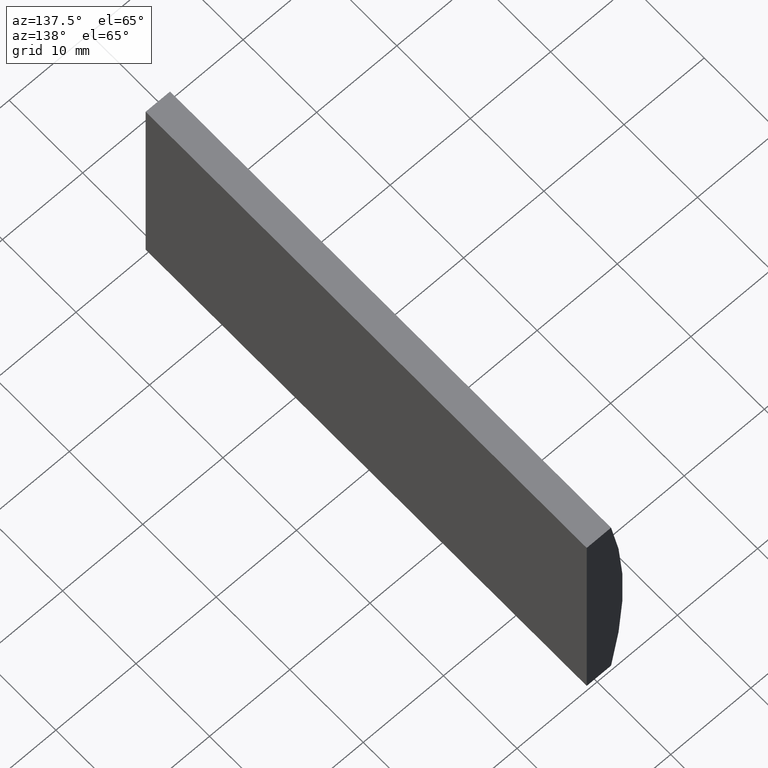
[diagram: clean part render]
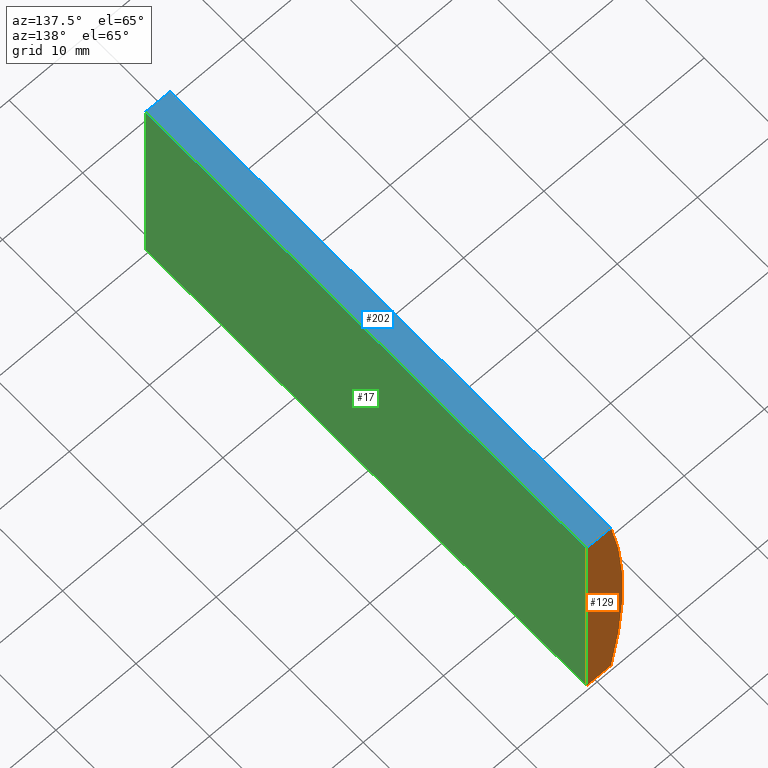
[diagram: same view with three faces highlighted in distinct colors, each labeled with its STEP entity id]
A machine part, auxiliary view with three faces highlighted in distinct colors.
Their STEP definitions:

[orange] entity #129 — the highlighted planar face has unit normal (0, 1, 0).
#2 = LINE ( 'NONE', #198, #8 ) ;
#8 = VECTOR ( 'NONE', #18, 1000.000000000000000 ) ;
#10 = CARTESIAN_POINT ( 'NONE',  ( 4.355204334851265500, 60.00000000000000000, 4.286263797015675000E-017 ) ) ;
#12 = VERTEX_POINT ( 'NONE', #30 ) ;
#18 = DIRECTION ( 'NONE',  ( -4.625929269271485900E-016, -0.0000000000000000000, -1.000000000000000000 ) ) ;
#20 = VERTEX_POINT ( 'NONE', #64 ) ;
#23 = ORIENTED_EDGE ( 'NONE', *, *, #67, .T. ) ;
#27 = DIRECTION ( 'NONE',  ( 0.0000000000000000000, -0.0000000000000000000, 1.000000000000000000 ) ) ;
#30 = CARTESIAN_POINT ( 'NONE',  ( -68.69479566514873200, 60.00000000000000000, 15.00000000000000000 ) ) ;
#37 = DIRECTION ( 'NONE',  ( 0.0000000000000000000, 1.000000000000000000, 0.0000000000000000000 ) ) ;
#38 = EDGE_CURVE ( 'NONE', #201, #12, #47, .T. ) ;
#44 = CARTESIAN_POINT ( 'NONE',  ( -71.73029034054660300, 60.00000000000000000, 15.00000000000000000 ) ) ;
#45 = EDGE_LOOP ( 'NONE', ( #23, #72, #51, #120 ) ) ;
#47 = LINE ( 'NONE', #187, #150 ) ;
#51 = ORIENTED_EDGE ( 'NONE', *, *, #115, .T. ) ;
#57 = DIRECTION ( 'NONE',  ( 0.0000000000000000000, 1.000000000000000000, 0.0000000000000000000 ) ) ;
#64 = CARTESIAN_POINT ( 'NONE',  ( -71.73029034054660300, 60.00000000000000000, -15.00000000000000000 ) ) ;
#67 = EDGE_CURVE ( 'NONE', #20, #201, #104, .T. ) ;
#72 = ORIENTED_EDGE ( 'NONE', *, *, #38, .T. ) ;
#76 = FACE_OUTER_BOUND ( 'NONE', #45, .T. ) ;
#86 = AXIS2_PLACEMENT_3D ( 'NONE', #192, #37, #105 ) ;
#96 = DIRECTION ( 'NONE',  ( 1.000000000000000000, 0.0000000000000000000, 0.0000000000000000000 ) ) ;
#100 = EDGE_CURVE ( 'NONE', #196, #20, #164, .T. ) ;
#104 = CIRCLE ( 'NONE', #86, 77.54999999999998300 ) ;
#105 = DIRECTION ( 'NONE',  ( 0.0000000000000000000, 0.0000000000000000000, 1.000000000000000000 ) ) ;
#115 = EDGE_CURVE ( 'NONE', #12, #196, #2, .T. ) ;
#120 = ORIENTED_EDGE ( 'NONE', *, *, #100, .T. ) ;
#129 = ADVANCED_FACE ( 'NONE', ( #76 ), #148, .T. ) ;
#136 = AXIS2_PLACEMENT_3D ( 'NONE', #10, #57, #27 ) ;
#148 = PLANE ( 'NONE',  #136 ) ;
#150 = VECTOR ( 'NONE', #96, 1000.000000000000000 ) ;
#156 = DIRECTION ( 'NONE',  ( -1.000000000000000000, -0.0000000000000000000, 1.142959327213734500E-015 ) ) ;
#164 = LINE ( 'NONE', #172, #200 ) ;
#172 = CARTESIAN_POINT ( 'NONE',  ( -71.73029034054660300, 60.00000000000000000, -15.00000000000000000 ) ) ;
#184 = CARTESIAN_POINT ( 'NONE',  ( -68.69479566514874600, 60.00000000000000000, -15.00000000000000400 ) ) ;
#187 = CARTESIAN_POINT ( 'NONE',  ( -71.73029034054660300, 60.00000000000000000, 15.00000000000000000 ) ) ;
#192 = CARTESIAN_POINT ( 'NONE',  ( 4.355204334851265500, 60.00000000000000000, 4.286263797015675000E-017 ) ) ;
#196 = VERTEX_POINT ( 'NONE', #184 ) ;
#198 = CARTESIAN_POINT ( 'NONE',  ( -68.69479566514874600, 60.00000000000000000, -15.00000000000000400 ) ) ;
#200 = VECTOR ( 'NONE', #156, 1000.000000000000000 ) ;
#201 = VERTEX_POINT ( 'NONE', #44 ) ;

[blue] entity #202 — the highlighted planar face has unit normal (0, 0, -1).
#1 = LINE ( 'NONE', #128, #106 ) ;
#3 = VERTEX_POINT ( 'NONE', #197 ) ;
#7 = LINE ( 'NONE', #186, #177 ) ;
#9 = DIRECTION ( 'NONE',  ( -0.0000000000000000000, -1.000000000000000000, -0.0000000000000000000 ) ) ;
#11 = DIRECTION ( 'NONE',  ( -1.000000000000000000, 0.0000000000000000000, -0.0000000000000000000 ) ) ;
#12 = VERTEX_POINT ( 'NONE', #30 ) ;
#29 = EDGE_CURVE ( 'NONE', #12, #3, #7, .T. ) ;
#30 = CARTESIAN_POINT ( 'NONE',  ( -68.69479566514873200, 60.00000000000000000, 15.00000000000000000 ) ) ;
#33 = EDGE_CURVE ( 'NONE', #50, #3, #53, .T. ) ;
#38 = EDGE_CURVE ( 'NONE', #201, #12, #47, .T. ) ;
#43 = FACE_OUTER_BOUND ( 'NONE', #204, .T. ) ;
#44 = CARTESIAN_POINT ( 'NONE',  ( -71.73029034054660300, 60.00000000000000000, 15.00000000000000000 ) ) ;
#47 = LINE ( 'NONE', #187, #150 ) ;
#50 = VERTEX_POINT ( 'NONE', #90 ) ;
#53 = LINE ( 'NONE', #199, #158 ) ;
#79 = CARTESIAN_POINT ( 'NONE',  ( -71.73029034054660300, 60.00000000000000000, 15.00000000000000000 ) ) ;
#83 = ORIENTED_EDGE ( 'NONE', *, *, #151, .T. ) ;
#85 = ORIENTED_EDGE ( 'NONE', *, *, #29, .F. ) ;
#90 = CARTESIAN_POINT ( 'NONE',  ( -71.73029034054660300, 0.0000000000000000000, 15.00000000000000000 ) ) ;
#96 = DIRECTION ( 'NONE',  ( 1.000000000000000000, 0.0000000000000000000, 0.0000000000000000000 ) ) ;
#106 = VECTOR ( 'NONE', #149, 1000.000000000000000 ) ;
#127 = PLANE ( 'NONE',  #138 ) ;
#128 = CARTESIAN_POINT ( 'NONE',  ( -71.73029034054660300, 60.00000000000000000, 15.00000000000000000 ) ) ;
#133 = DIRECTION ( 'NONE',  ( 1.000000000000000000, 0.0000000000000000000, 0.0000000000000000000 ) ) ;
#138 = AXIS2_PLACEMENT_3D ( 'NONE', #79, #142, #11 ) ;
#142 = DIRECTION ( 'NONE',  ( 0.0000000000000000000, 0.0000000000000000000, -1.000000000000000000 ) ) ;
#149 = DIRECTION ( 'NONE',  ( -0.0000000000000000000, -1.000000000000000000, -0.0000000000000000000 ) ) ;
#150 = VECTOR ( 'NONE', #96, 1000.000000000000000 ) ;
#151 = EDGE_CURVE ( 'NONE', #201, #50, #1, .T. ) ;
#158 = VECTOR ( 'NONE', #133, 1000.000000000000000 ) ;
#159 = ORIENTED_EDGE ( 'NONE', *, *, #38, .F. ) ;
#177 = VECTOR ( 'NONE', #9, 1000.000000000000000 ) ;
#186 = CARTESIAN_POINT ( 'NONE',  ( -68.69479566514873200, 60.00000000000000000, 15.00000000000000000 ) ) ;
#187 = CARTESIAN_POINT ( 'NONE',  ( -71.73029034054660300, 60.00000000000000000, 15.00000000000000000 ) ) ;
#188 = ORIENTED_EDGE ( 'NONE', *, *, #33, .T. ) ;
#197 = CARTESIAN_POINT ( 'NONE',  ( -68.69479566514873200, 0.0000000000000000000, 15.00000000000000000 ) ) ;
#199 = CARTESIAN_POINT ( 'NONE',  ( -71.73029034054660300, 0.0000000000000000000, 15.00000000000000000 ) ) ;
#201 = VERTEX_POINT ( 'NONE', #44 ) ;
#202 = ADVANCED_FACE ( 'NONE', ( #43 ), #127, .F. ) ;
#204 = EDGE_LOOP ( 'NONE', ( #188, #85, #159, #83 ) ) ;

[green] entity #17 — the highlighted planar face has unit normal (-1, 0, 0).
#2 = LINE ( 'NONE', #198, #8 ) ;
#3 = VERTEX_POINT ( 'NONE', #197 ) ;
#6 = EDGE_LOOP ( 'NONE', ( #24, #32, #166, #169 ) ) ;
#7 = LINE ( 'NONE', #186, #177 ) ;
#8 = VECTOR ( 'NONE', #18, 1000.000000000000000 ) ;
#9 = DIRECTION ( 'NONE',  ( -0.0000000000000000000, -1.000000000000000000, -0.0000000000000000000 ) ) ;
#12 = VERTEX_POINT ( 'NONE', #30 ) ;
#17 = ADVANCED_FACE ( 'NONE', ( #168 ), #97, .F. ) ;
#18 = DIRECTION ( 'NONE',  ( -4.625929269271485900E-016, -0.0000000000000000000, -1.000000000000000000 ) ) ;
#24 = ORIENTED_EDGE ( 'NONE', *, *, #107, .T. ) ;
#29 = EDGE_CURVE ( 'NONE', #12, #3, #7, .T. ) ;
#30 = CARTESIAN_POINT ( 'NONE',  ( -68.69479566514873200, 60.00000000000000000, 15.00000000000000000 ) ) ;
#32 = ORIENTED_EDGE ( 'NONE', *, *, #135, .F. ) ;
#34 = CARTESIAN_POINT ( 'NONE',  ( -68.69479566514874600, 0.0000000000000000000, -15.00000000000000400 ) ) ;
#36 = VECTOR ( 'NONE', #108, 1000.000000000000000 ) ;
#48 = VERTEX_POINT ( 'NONE', #154 ) ;
#97 = PLANE ( 'NONE',  #167 ) ;
#107 = EDGE_CURVE ( 'NONE', #3, #48, #191, .T. ) ;
#108 = DIRECTION ( 'NONE',  ( -4.625929269271485900E-016, -0.0000000000000000000, -1.000000000000000000 ) ) ;
#111 = CARTESIAN_POINT ( 'NONE',  ( -68.69479566514874600, 60.00000000000000000, -15.00000000000000400 ) ) ;
#112 = DIRECTION ( 'NONE',  ( -1.000000000000000000, 0.0000000000000000000, 4.625929269271485900E-016 ) ) ;
#113 = DIRECTION ( 'NONE',  ( -0.0000000000000000000, -1.000000000000000000, -0.0000000000000000000 ) ) ;
#115 = EDGE_CURVE ( 'NONE', #12, #196, #2, .T. ) ;
#125 = VECTOR ( 'NONE', #113, 1000.000000000000000 ) ;
#126 = CARTESIAN_POINT ( 'NONE',  ( -68.69479566514874600, 60.00000000000000000, -15.00000000000000400 ) ) ;
#135 = EDGE_CURVE ( 'NONE', #196, #48, #203, .T. ) ;
#154 = CARTESIAN_POINT ( 'NONE',  ( -68.69479566514874600, 0.0000000000000000000, -15.00000000000000400 ) ) ;
#166 = ORIENTED_EDGE ( 'NONE', *, *, #115, .F. ) ;
#167 = AXIS2_PLACEMENT_3D ( 'NONE', #111, #112, #180 ) ;
#168 = FACE_OUTER_BOUND ( 'NONE', #6, .T. ) ;
#169 = ORIENTED_EDGE ( 'NONE', *, *, #29, .T. ) ;
#177 = VECTOR ( 'NONE', #9, 1000.000000000000000 ) ;
#180 = DIRECTION ( 'NONE',  ( 4.625929269271485900E-016, 0.0000000000000000000, 1.000000000000000000 ) ) ;
#184 = CARTESIAN_POINT ( 'NONE',  ( -68.69479566514874600, 60.00000000000000000, -15.00000000000000400 ) ) ;
#186 = CARTESIAN_POINT ( 'NONE',  ( -68.69479566514873200, 60.00000000000000000, 15.00000000000000000 ) ) ;
#191 = LINE ( 'NONE', #34, #36 ) ;
#196 = VERTEX_POINT ( 'NONE', #184 ) ;
#197 = CARTESIAN_POINT ( 'NONE',  ( -68.69479566514873200, 0.0000000000000000000, 15.00000000000000000 ) ) ;
#198 = CARTESIAN_POINT ( 'NONE',  ( -68.69479566514874600, 60.00000000000000000, -15.00000000000000400 ) ) ;
#203 = LINE ( 'NONE', #126, #125 ) ;